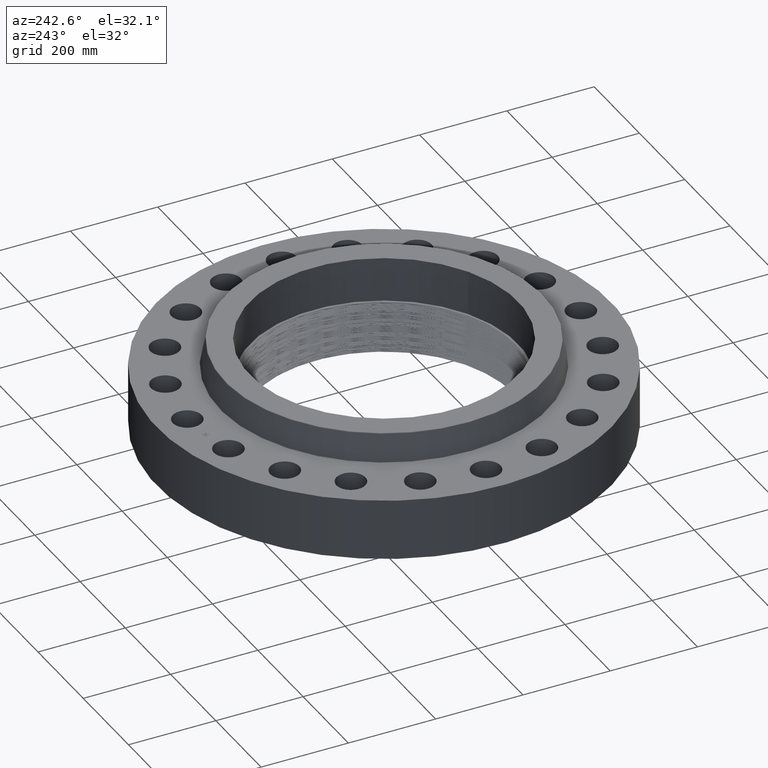
[diagram: clean part render]
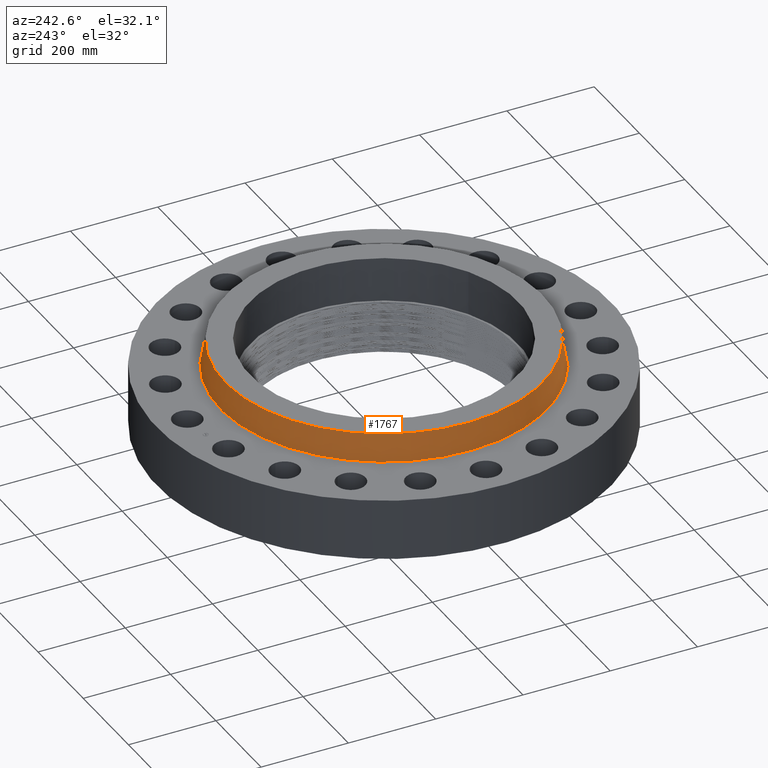
[diagram: same view with one face highlighted and labeled with its STEP entity id]
A machine part, auxiliary view. The second image highlights one B-rep face of the part: STEP entity #1767.
In plain terms, the highlighted conical surface has half-angle 10 deg.
Its self-contained STEP definition (entity closure, byte-faithful):
#1687=AXIS2_PLACEMENT_3D('Circle Axis2P3D',#1685,#1686,$) ;
#1740=AXIS2_PLACEMENT_3D('Cone Axis2P3D',#1737,#1738,#1739) ;
#1744=AXIS2_PLACEMENT_3D('Circle Axis2P3D',#1742,#1743,$) ;
#1685=CARTESIAN_POINT('Axis2P3D Location',(0.,0.,7.95041889069)) ;
#1689=CARTESIAN_POINT('Vertex',(-6.86437892189,-12.5651613337,7.95041889069)) ;
#1691=CARTESIAN_POINT('Vertex',(6.86437892189,12.5651613337,7.95041889069)) ;
#1737=CARTESIAN_POINT('Axis2P3D Location',(0.,0.,7.95041889069)) ;
#1742=CARTESIAN_POINT('Axis2P3D Location',(0.,0.,5.54958110936)) ;
#1746=CARTESIAN_POINT('Vertex',(-7.06733532275,-12.9366705335,5.54958110936)) ;
#1748=CARTESIAN_POINT('Vertex',(7.06733532275,12.9366705335,5.54958110936)) ;
#1751=CARTESIAN_POINT('Line Origine',(-6.96585712232,-12.7509159336,6.75000000003)) ;
#1756=CARTESIAN_POINT('Line Origine',(6.96585712232,12.7509159336,6.75000000003)) ;
#1686=DIRECTION('Axis2P3D Direction',(0.,0.,-0.0393700787402)) ;
#1738=DIRECTION('Axis2P3D Direction',(0.,0.,-0.0393700787402)) ;
#1739=DIRECTION('Axis2P3D XDirection',(0.0188750212049,0.0345504945626,0.)) ;
#1743=DIRECTION('Axis2P3D Direction',(0.,0.,-0.0393700787402)) ;
#1752=DIRECTION('Vector Direction',(-0.00327761303565,-0.00599963041829,-0.03877195878)) ;
#1757=DIRECTION('Vector Direction',(0.00327761303565,0.00599963041829,-0.03877195878)) ;
#1753=VECTOR('Line Direction',#1752,0.0393700787402) ;
#1758=VECTOR('Line Direction',#1757,0.0393700787402) ;
#1762=ORIENTED_EDGE('',*,*,#1750,.F.) ;
#1763=ORIENTED_EDGE('',*,*,#1755,.T.) ;
#1764=ORIENTED_EDGE('',*,*,#1693,.T.) ;
#1765=ORIENTED_EDGE('',*,*,#1760,.F.) ;
#1767=ADVANCED_FACE('PartBody',(#1766),#1741,.T.) ;
#1688=CIRCLE('generated circle',#1687,14.3179250356) ;
#1745=CIRCLE('generated circle',#1744,14.7412575127) ;
#1741=CONICAL_SURFACE('Cone',#1740,14.3179250356,0.174532925199) ;
#1693=EDGE_CURVE('',#1690,#1692,#1688,.T.) ;
#1750=EDGE_CURVE('',#1747,#1749,#1745,.T.) ;
#1755=EDGE_CURVE('',#1747,#1690,#1754,.F.) ;
#1760=EDGE_CURVE('',#1749,#1692,#1759,.F.) ;
#1761=EDGE_LOOP('',(#1762,#1763,#1764,#1765)) ;
#1766=FACE_OUTER_BOUND('',#1761,.T.) ;
#1754=LINE('Line',#1751,#1753) ;
#1759=LINE('Line',#1756,#1758) ;
#1690=VERTEX_POINT('',#1689) ;
#1692=VERTEX_POINT('',#1691) ;
#1747=VERTEX_POINT('',#1746) ;
#1749=VERTEX_POINT('',#1748) ;